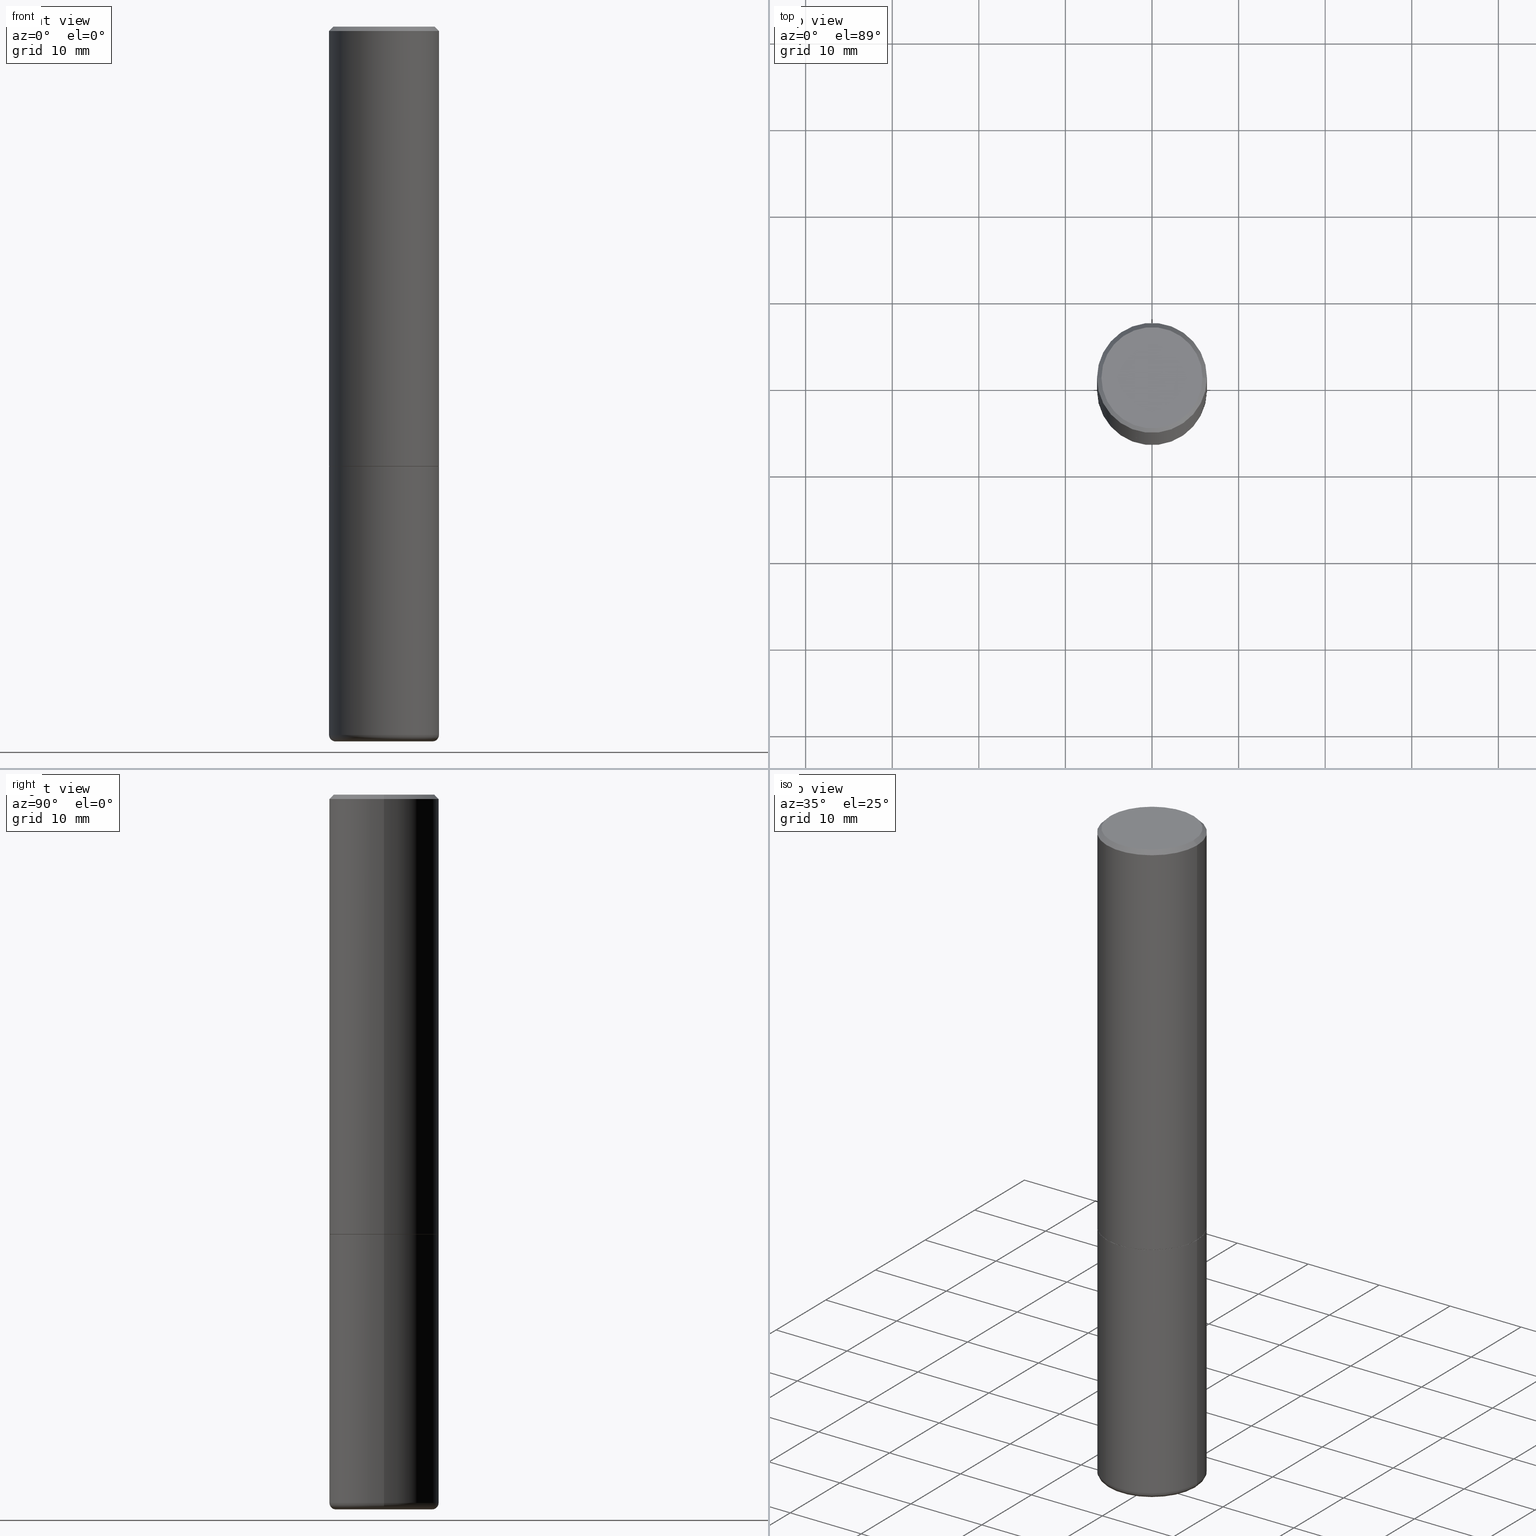
[diagram: canonical four-view strip — front | top / right | iso, engineering-drawing reading convention]
A machine part, canonical four-view strip (front | top / right | iso — engineering-drawing reading convention). The complete STEP part file that produces these views, byte-faithful:
ISO-10303-21;
HEADER;
FILE_DESCRIPTION (( 'STEP AP203' ),
    '1' );
FILE_NAME ('77176.STEP',
    '2024-03-06T16:16:53',
    ( '' ),
    ( '' ),
    'SwSTEP 2.0',
    'SolidWorks 2023',
    '' );
FILE_SCHEMA (( 'CONFIG_CONTROL_DESIGN' ));
ENDSEC;

DATA;
#1 = DIRECTION ( 'NONE',  ( -2.445468806185136597E-29, 3.491481338843145583E-15, 1.000000000000000000 ) ) ;
#2 = DIRECTION ( 'NONE',  ( 1.000000000000000000, -6.982962677686262766E-15, 4.883557194083111780E-29 ) ) ;
#3 = CARTESIAN_POINT ( 'NONE',  ( 0.2200000000000000011, -1.277882170016590942E-14, -3.220000000000000195 ) ) ;
#4 = DIRECTION ( 'NONE',  ( -2.445468806185136597E-29, 3.491481338843145583E-15, 1.000000000000000000 ) ) ;
#5 = CIRCLE ( 'NONE', #92, 0.02999999999999971440 ) ;
#6 = EDGE_LOOP ( 'NONE', ( #84, #311, #244, #404 ) ) ;
#7 = DIRECTION ( 'NONE',  ( -2.445468806185136597E-29, 3.491481338843145583E-15, 1.000000000000000000 ) ) ;
#8 = DIRECTION ( 'NONE',  ( 1.000000000000000000, -6.982962677686266711E-15, 4.876176775795935793E-29 ) ) ;
#9 = EDGE_CURVE ( 'NONE', #410, #307, #237, .T. ) ;
#10 = CARTESIAN_POINT ( 'NONE',  ( -0.2500000000000001110, 1.776356839400251254E-15, -1.229733772563727006E-29 ) ) ;
#11 = ORIENTED_EDGE ( 'NONE', *, *, #217, .F. ) ;
#12 = CC_DESIGN_PERSON_AND_ORGANIZATION_ASSIGNMENT ( #175, #323, ( #358 ) ) ;
#13 = DIRECTION ( 'NONE',  ( 1.000000000000000000, -6.982962677686267499E-15, 0.000000000000000000 ) ) ;
#14 =( CONVERSION_BASED_UNIT ( 'INCH', #165 ) LENGTH_UNIT ( ) NAMED_UNIT ( #138 ) );
#15 = ADVANCED_BREP_SHAPE_REPRESENTATION ( '77176', ( #146, #291, #78 ), #283 ) ;
#16 = ADVANCED_FACE ( 'NONE', ( #272 ), #408, .T. ) ;
#17 = COORDINATED_UNIVERSAL_TIME_OFFSET ( 5, 0, .BEHIND. ) ;
#18 = ORIENTED_EDGE ( 'NONE', *, *, #30, .T. ) ;
#19 = ADVANCED_FACE ( 'NONE', ( #310 ), #396, .T. ) ;
#20 = ORIENTED_EDGE ( 'NONE', *, *, #218, .F. ) ;
#21 = DATE_AND_TIME ( #403, #145 ) ;
#22 = AXIS2_PLACEMENT_3D ( 'NONE', #135, #103, #236 ) ;
#23 = CARTESIAN_POINT ( 'NONE',  ( 0.2200000000000000566, -1.288356614033120121E-14, -3.249999999999999556 ) ) ;
#24 = LOCAL_TIME ( 11, 16, 53.00000000000000000, #41 ) ;
#25 = FACE_OUTER_BOUND ( 'NONE', #149, .T. ) ;
#26 = ORIENTED_EDGE ( 'NONE', *, *, #62, .F. ) ;
#27 = CLOSED_SHELL ( 'NONE', ( #277, #157, #173, #16, #268, #19 ) ) ;
#28 = EDGE_CURVE ( 'NONE', #285, #307, #411, .T. ) ;
#29 = AXIS2_PLACEMENT_3D ( 'NONE', #248, #293, #2 ) ;
#30 = EDGE_CURVE ( 'NONE', #365, #201, #107, .T. ) ;
#31 = CARTESIAN_POINT ( 'NONE',  ( 0.000000000000000000, 0.000000000000000000, 0.000000000000000000 ) ) ;
#32 = DIRECTION ( 'NONE',  ( -2.445468806185136597E-29, 3.491481338843145583E-15, 1.000000000000000000 ) ) ;
#33 = CIRCLE ( 'NONE', #321, 0.2200000000000000566 ) ;
#34 = DIRECTION ( 'NONE',  ( 2.438088387897960049E-29, -3.491481338843145188E-15, -1.000000000000000000 ) ) ;
#35 = DIRECTION ( 'NONE',  ( 1.000000000000000000, -6.982962677686269077E-15, 0.000000000000000000 ) ) ;
#36 = DATE_AND_TIME ( #330, #24 ) ;
#37 = DIRECTION ( 'NONE',  ( -2.445468806185136877E-29, 3.491481338843145188E-15, 1.000000000000000000 ) ) ;
#38 = CARTESIAN_POINT ( 'NONE',  ( -0.2489999999999999991, -5.208412811295418518E-15, -2.000000000000000000 ) ) ;
#39 = CIRCLE ( 'NONE', #278, 0.2500000000000000000 ) ;
#40 = CC_DESIGN_DATE_AND_TIME_ASSIGNMENT ( #336, #105, ( #279 ) ) ;
#41 = COORDINATED_UNIVERSAL_TIME_OFFSET ( 5, 0, .BEHIND. ) ;
#42 = ORIENTED_EDGE ( 'NONE', *, *, #189, .T. ) ;
#43 = DIRECTION ( 'NONE',  ( 1.000000000000000000, -6.982962677686269866E-15, 0.000000000000000000 ) ) ;
#44 = DIRECTION ( 'NONE',  ( -1.000000000000000000, 6.982962677686265922E-15, -4.876176775795935793E-29 ) ) ;
#45 = ORIENTED_EDGE ( 'NONE', *, *, #189, .F. ) ;
#46 = EDGE_CURVE ( 'NONE', #158, #282, #5, .T. ) ;
#47 = APPROVAL_ROLE ( '' ) ;
#48 = PRODUCT_RELATED_PRODUCT_CATEGORY ( 'detail', '', ( #415 ) ) ;
#49 =( LENGTH_UNIT ( ) NAMED_UNIT ( * ) SI_UNIT ( $, .METRE. ) );
#50 = AXIS2_PLACEMENT_3D ( 'NONE', #70, #32, #155 ) ;
#51 = VECTOR ( 'NONE', #167, 39.37007874015748143 ) ;
#52 = EDGE_LOOP ( 'NONE', ( #287, #322, #58, #308 ) ) ;
#53 = FACE_OUTER_BOUND ( 'NONE', #232, .T. ) ;
#54 = APPROVAL ( #115, 'UNSPECIFIED' ) ;
#55 = APPROVAL_ROLE ( '' ) ;
#56 = EDGE_LOOP ( 'NONE', ( #168, #273, #288, #251 ) ) ;
#57 = AXIS2_PLACEMENT_3D ( 'NONE', #137, #171, #316 ) ;
#58 = ORIENTED_EDGE ( 'NONE', *, *, #28, .F. ) ;
#59 = DIRECTION ( 'NONE',  ( -2.445468806185136597E-29, 3.491481338843145583E-15, 1.000000000000000000 ) ) ;
#60 = VERTEX_POINT ( 'NONE', #195 ) ;
#61 = CARTESIAN_POINT ( 'NONE',  ( 0.2489999999999999991, -8.721720384430171040E-15, -2.000000000000000000 ) ) ;
#62 = EDGE_CURVE ( 'NONE', #401, #201, #108, .T. ) ;
#63 = AXIS2_PLACEMENT_3D ( 'NONE', #335, #34, #44 ) ;
#64 = DIRECTION ( 'NONE',  ( 1.000000000000000000, -6.982962677686266711E-15, 4.876176775795935793E-29 ) ) ;
#65 = DIRECTION ( 'NONE',  ( 1.000000000000000000, -6.982962677686270655E-15, 0.000000000000000000 ) ) ;
#66 = AXIS2_PLACEMENT_3D ( 'NONE', #106, #126, #159 ) ;
#67 = ADVANCED_FACE ( 'NONE', ( #274 ), #416, .T. ) ;
#68 = DIRECTION ( 'NONE',  ( 1.000000000000000000, -6.982962677686270655E-15, 0.000000000000000000 ) ) ;
#69 = CC_DESIGN_PERSON_AND_ORGANIZATION_ASSIGNMENT ( #387, #231, ( #279 ) ) ;
#70 = CARTESIAN_POINT ( 'NONE',  ( 0.000000000000000000, 0.000000000000000000, 0.000000000000000000 ) ) ;
#71 = CARTESIAN_POINT ( 'NONE',  ( -0.2500000000000002776, -1.748293572161900530E-15, -1.998999999999999888 ) ) ;
#72 = CC_DESIGN_APPROVAL ( #332, ( #279 ) ) ;
#73 = CARTESIAN_POINT ( 'NONE',  ( 4.890937612370287172E-31, -6.982962677686310098E-17, -0.02000000000000005593 ) ) ;
#74 = EDGE_CURVE ( 'NONE', #246, #60, #230, .T. ) ;
#75 = DIRECTION ( 'NONE',  ( -2.445468806185136597E-29, 3.491481338843145583E-15, 1.000000000000000000 ) ) ;
#76 = APPROVAL_DATE_TIME ( #21, #54 ) ;
#77 = TOROIDAL_SURFACE ( 'NONE', #346, 0.2200000000000000011, 0.02999999999999969705 ) ;
#78 = AXIS2_PLACEMENT_3D ( 'NONE', #226, #253, #352 ) ;
#79 = EDGE_LOOP ( 'NONE', ( #348, #81, #169, #166 ) ) ;
#80 = PERSON_AND_ORGANIZATION ( #355, #400 ) ;
#81 = ORIENTED_EDGE ( 'NONE', *, *, #184, .T. ) ;
#82 = DIRECTION ( 'NONE',  ( -2.445468806185136597E-29, 3.491481338843145583E-15, 1.000000000000000000 ) ) ;
#83 = PERSON_AND_ORGANIZATION_ROLE ( 'design_supplier' ) ;
#84 = ORIENTED_EDGE ( 'NONE', *, *, #74, .F. ) ;
#85 = DIRECTION ( 'NONE',  ( -2.445468806185136597E-29, 3.491481338843145583E-15, 1.000000000000000000 ) ) ;
#86 = TOROIDAL_SURFACE ( 'NONE', #29, 0.2200000000000000011, 0.02999999999999969705 ) ;
#87 = CIRCLE ( 'NONE', #185, 0.2500000000000002776 ) ;
#88 = DIRECTION ( 'NONE',  ( 1.000000000000000000, -6.982962677686267499E-15, 4.876225828469310563E-29 ) ) ;
#89 = EDGE_CURVE ( 'NONE', #365, #282, #39, .T. ) ;
#90 = LINE ( 'NONE', #220, #364 ) ;
#91 = DIRECTION ( 'NONE',  ( -2.445468806185136597E-29, 3.491481338843145583E-15, 1.000000000000000000 ) ) ;
#92 = AXIS2_PLACEMENT_3D ( 'NONE', #3, #127, #43 ) ;
#93 = CARTESIAN_POINT ( 'NONE',  ( 7.947773620101692818E-29, -1.134731435124022127E-14, -3.249999999999999556 ) ) ;
#94 = FACE_OUTER_BOUND ( 'NONE', #213, .T. ) ;
#95 = LINE ( 'NONE', #359, #340 ) ;
#96 = VECTOR ( 'NONE', #392, 39.37007874015748143 ) ;
#97 = LOCAL_TIME ( 11, 16, 53.00000000000000000, #172 ) ;
#98 = VERTEX_POINT ( 'NONE', #38 ) ;
#99 = CARTESIAN_POINT ( 'NONE',  ( 0.2499999999999999167, -1.784954126219745400E-15, -0.02000000000000005593 ) ) ;
#100 = ORIENTED_EDGE ( 'NONE', *, *, #218, .T. ) ;
#101 = SHAPE_DEFINITION_REPRESENTATION ( #328, #15 ) ;
#102 = ORIENTED_EDGE ( 'NONE', *, *, #30, .F. ) ;
#103 = DIRECTION ( 'NONE',  ( -2.445468806185136597E-29, 3.491481338843145583E-15, 1.000000000000000000 ) ) ;
#104 = EDGE_CURVE ( 'NONE', #201, #401, #113, .T. ) ;
#105 = DATE_TIME_ROLE ( 'classification_date' ) ;
#106 = CARTESIAN_POINT ( 'NONE',  ( 4.890937612370273194E-29, -6.982962677686291165E-15, -2.000000000000000000 ) ) ;
#107 = LINE ( 'NONE', #300, #252 ) ;
#108 = CIRCLE ( 'NONE', #363, 0.2500000000000000000 ) ;
#109 = AXIS2_PLACEMENT_3D ( 'NONE', #257, #414, #223 ) ;
#110 = EDGE_LOOP ( 'NONE', ( #239, #42, #302, #394 ) ) ;
#111 = CC_DESIGN_PERSON_AND_ORGANIZATION_ASSIGNMENT ( #376, #83, ( #358 ) ) ;
#112 = ORIENTED_EDGE ( 'NONE', *, *, #9, .F. ) ;
#113 = CIRCLE ( 'NONE', #66, 0.2500000000000000000 ) ;
#114 = EDGE_CURVE ( 'NONE', #369, #285, #366, .T. ) ;
#115 = APPROVAL_STATUS ( 'not_yet_approved' ) ;
#116 = ORIENTED_EDGE ( 'NONE', *, *, #333, .T. ) ;
#117 = CARTESIAN_POINT ( 'NONE',  ( 4.890937612370273194E-29, -6.982962677686291165E-15, -2.000000000000000000 ) ) ;
#118 = ADVANCED_FACE ( 'NONE', ( #391 ), #362, .T. ) ;
#119 = EDGE_CURVE ( 'NONE', #282, #365, #242, .T. ) ;
#120 = AXIS2_PLACEMENT_3D ( 'NONE', #397, #161, #8 ) ;
#121 = EDGE_CURVE ( 'NONE', #60, #246, #338, .T. ) ;
#122 = PRODUCT_DEFINITION ( 'UNKNOWN', '', #358, #179 ) ;
#123 = CARTESIAN_POINT ( 'NONE',  ( -0.2200000000000000566, -9.625166702121341610E-15, -3.249999999999999556 ) ) ;
#124 = ADVANCED_FACE ( 'NONE', ( #53 ), #208, .F. ) ;
#125 = CIRCLE ( 'NONE', #154, 0.2500000000000002776 ) ;
#126 = DIRECTION ( 'NONE',  ( -2.445468806185136597E-29, 3.491481338843145583E-15, 1.000000000000000000 ) ) ;
#127 = DIRECTION ( 'NONE',  ( -6.982962677686266711E-15, -1.000000000000000000, 3.491481338843145583E-15 ) ) ;
#128 = APPROVAL_PERSON_ORGANIZATION ( #80, #261, #55 ) ;
#129 = ORIENTED_EDGE ( 'NONE', *, *, #89, .T. ) ;
#130 = PERSON_AND_ORGANIZATION ( #355, #400 ) ;
#131 = DIRECTION ( 'NONE',  ( 1.000000000000000000, -6.982962677686267499E-15, 4.876225828469310563E-29 ) ) ;
#132 = DIRECTION ( 'NONE',  ( 1.000000000000000000, -6.982962677686265922E-15, 4.876176775795935793E-29 ) ) ;
#133 = DIRECTION ( 'NONE',  ( -2.445468806185136877E-29, 3.491481338843145188E-15, 1.000000000000000000 ) ) ;
#134 = EDGE_LOOP ( 'NONE', ( #216, #18, #26, #11 ) ) ;
#135 = CARTESIAN_POINT ( 'NONE',  ( 4.890937612370273194E-29, -6.982962677686291165E-15, -2.000000000000000000 ) ) ;
#136 = ORIENTED_EDGE ( 'NONE', *, *, #89, .F. ) ;
#137 = CARTESIAN_POINT ( 'NONE',  ( 4.890937612370287172E-31, -6.982962677686310098E-17, -0.02000000000000005593 ) ) ;
#138 = DIMENSIONAL_EXPONENTS ( 1.000000000000000000, 0.000000000000000000, 0.000000000000000000, 0.000000000000000000, 0.000000000000000000, 0.000000000000000000, 0.000000000000000000 ) ;
#139 = ADVANCED_FACE ( 'NONE', ( #207 ), #350, .T. ) ;
#140 = ADVANCED_FACE ( 'NONE', ( #202 ), #219, .T. ) ;
#141 = ORIENTED_EDGE ( 'NONE', *, *, #303, .F. ) ;
#142 = CARTESIAN_POINT ( 'NONE',  ( 4.888492143564087591E-29, -6.979471196347447369E-15, -1.998999999999999888 ) ) ;
#143 = CALENDAR_DATE ( 2024, 6, 3 ) ;
#144 = AXIS2_PLACEMENT_3D ( 'NONE', #247, #312, #373 ) ;
#145 = LOCAL_TIME ( 11, 16, 53.00000000000000000, #344 ) ;
#146 = MANIFOLD_SOLID_BREP ( 'Body-Move/Copy2[1]', #27 ) ;
#147 = CARTESIAN_POINT ( 'NONE',  ( 7.874409555916140425E-29, -1.124256991107492948E-14, -3.220000000000000195 ) ) ;
#148 = EDGE_CURVE ( 'NONE', #369, #410, #87, .T. ) ;
#149 = EDGE_LOOP ( 'NONE', ( #265, #361 ) ) ;
#150 = PLANE ( 'NONE',  #385 ) ;
#151 = APPLICATION_CONTEXT ( 'configuration controlled 3d designs of mechanical parts and assemblies' ) ;
#152 = DIRECTION ( 'NONE',  ( -2.445468806185136597E-29, 3.491481338843145583E-15, 1.000000000000000000 ) ) ;
#153 = VECTOR ( 'NONE', #395, 39.37007874015748143 ) ;
#154 = AXIS2_PLACEMENT_3D ( 'NONE', #349, #59, #180 ) ;
#155 = DIRECTION ( 'NONE',  ( 1.000000000000000000, -6.982962677686266711E-15, 4.876176775795935793E-29 ) ) ;
#156 = DIRECTION ( 'NONE',  ( 1.000000000000000000, -6.982962677686267499E-15, 0.000000000000000000 ) ) ;
#157 = ADVANCED_FACE ( 'NONE', ( #319 ), #77, .T. ) ;
#158 = VERTEX_POINT ( 'NONE', #23 ) ;
#159 = DIRECTION ( 'NONE',  ( 1.000000000000000000, -6.982962677686266711E-15, 0.000000000000000000 ) ) ;
#160 = VECTOR ( 'NONE', #133, 39.37007874015748143 ) ;
#161 = DIRECTION ( 'NONE',  ( -2.445468806185136597E-29, 3.491481338843145583E-15, 1.000000000000000000 ) ) ;
#162 = EDGE_LOOP ( 'NONE', ( #388, #45 ) ) ;
#163 = LINE ( 'NONE', #275, #153 ) ;
#164 = CARTESIAN_POINT ( 'NONE',  ( 4.890937612370287172E-31, -6.982962677686310098E-17, -0.02000000000000005593 ) ) ;
#165 = LENGTH_MEASURE_WITH_UNIT ( LENGTH_MEASURE( 0.02539999999999999897 ), #49 );
#166 = ORIENTED_EDGE ( 'NONE', *, *, #292, .F. ) ;
#167 = DIRECTION ( 'NONE',  ( 0.7071067811865465735, -7.319954787623252890E-15, -0.7071067811865484609 ) ) ;
#168 = ORIENTED_EDGE ( 'NONE', *, *, #412, .F. ) ;
#169 = ORIENTED_EDGE ( 'NONE', *, *, #148, .F. ) ;
#170 = EDGE_LOOP ( 'NONE', ( #315, #100, #269, #377 ) ) ;
#171 = DIRECTION ( 'NONE',  ( 2.445468806185136597E-29, -3.491481338843145583E-15, -1.000000000000000000 ) ) ;
#172 = COORDINATED_UNIVERSAL_TIME_OFFSET ( 5, 0, .BEHIND. ) ;
#173 = ADVANCED_FACE ( 'NONE', ( #25 ), #150, .F. ) ;
#174 = ORIENTED_EDGE ( 'NONE', *, *, #114, .T. ) ;
#175 = PERSON_AND_ORGANIZATION ( #355, #400 ) ;
#176 = AXIS2_PLACEMENT_3D ( 'NONE', #263, #389, #356 ) ;
#177 = APPROVAL_PERSON_ORGANIZATION ( #130, #332, #191 ) ;
#178 = APPROVAL_DATE_TIME ( #250, #261 ) ;
#179 = DESIGN_CONTEXT ( 'detailed design', #294, 'design' ) ;
#180 = DIRECTION ( 'NONE',  ( 1.000000000000000000, -6.982962677686266711E-15, 0.000000000000000000 ) ) ;
#181 = VECTOR ( 'NONE', #37, 39.37007874015748143 ) ;
#182 = DIRECTION ( 'NONE',  ( -0.7071067811865465735, 2.468850131082246805E-15, -0.7071067811865484609 ) ) ;
#183 =( NAMED_UNIT ( * ) PLANE_ANGLE_UNIT ( ) SI_UNIT ( $, .RADIAN. ) );
#184 = EDGE_CURVE ( 'NONE', #98, #410, #227, .T. ) ;
#185 = AXIS2_PLACEMENT_3D ( 'NONE', #142, #249, #375 ) ;
#186 = DIRECTION ( 'NONE',  ( 1.000000000000000000, -6.982962677686266711E-15, 0.000000000000000000 ) ) ;
#187 = CARTESIAN_POINT ( 'NONE',  ( 2.087702828670439639E-46, -2.980686340760894400E-32, -8.537024980200822558E-18 ) ) ;
#188 = DIRECTION ( 'NONE',  ( -2.445468806185136597E-29, 3.491481338843145583E-15, 1.000000000000000000 ) ) ;
#189 = EDGE_CURVE ( 'NONE', #98, #334, #206, .T. ) ;
#190 = PERSON_AND_ORGANIZATION ( #355, #400 ) ;
#191 = APPROVAL_ROLE ( '' ) ;
#192 = CC_DESIGN_PERSON_AND_ORGANIZATION_ASSIGNMENT ( #190, #343, ( #415 ) ) ;
#193 = ORIENTED_EDGE ( 'NONE', *, *, #224, .F. ) ;
#194 = APPROVAL_STATUS ( 'not_yet_approved' ) ;
#195 = CARTESIAN_POINT ( 'NONE',  ( -0.2299999999999999267, 1.640996229256272125E-15, -8.537024980212177841E-18 ) ) ;
#196 = ORIENTED_EDGE ( 'NONE', *, *, #46, .T. ) ;
#197 = EDGE_LOOP ( 'NONE', ( #112, #390, #174, #193 ) ) ;
#198 = CARTESIAN_POINT ( 'NONE',  ( 4.890937612370273194E-29, -6.982962677686291165E-15, -2.000000000000000000 ) ) ;
#199 = AXIS2_PLACEMENT_3D ( 'NONE', #245, #370, #132 ) ;
#200 = DIRECTION ( 'NONE',  ( -2.445468806185136597E-29, 3.491481338843145583E-15, 1.000000000000000000 ) ) ;
#201 = VERTEX_POINT ( 'NONE', #260 ) ;
#202 = FACE_OUTER_BOUND ( 'NONE', #56, .T. ) ;
#203 = ORIENTED_EDGE ( 'NONE', *, *, #217, .T. ) ;
#204 = PERSON_AND_ORGANIZATION ( #355, #400 ) ;
#205 = CC_DESIGN_DATE_AND_TIME_ASSIGNMENT ( #210, #314, ( #122 ) ) ;
#206 = CIRCLE ( 'NONE', #22, 0.2489999999999999991 ) ;
#207 = FACE_OUTER_BOUND ( 'NONE', #79, .T. ) ;
#208 = PLANE ( 'NONE',  #144 ) ;
#209 = ORIENTED_EDGE ( 'NONE', *, *, #74, .T. ) ;
#210 = DATE_AND_TIME ( #339, #97 ) ;
#211 = AXIS2_PLACEMENT_3D ( 'NONE', #383, #241, #367 ) ;
#212 = APPROVAL_PERSON_ORGANIZATION ( #281, #54, #47 ) ;
#213 = EDGE_LOOP ( 'NONE', ( #20, #116, #196, #136 ) ) ;
#214 = FACE_OUTER_BOUND ( 'NONE', #134, .T. ) ;
#215 = DIRECTION ( 'NONE',  ( 1.000000000000000000, -6.982962677686266711E-15, 0.000000000000000000 ) ) ;
#216 = ORIENTED_EDGE ( 'NONE', *, *, #119, .T. ) ;
#217 = EDGE_CURVE ( 'NONE', #282, #401, #163, .T. ) ;
#218 = EDGE_CURVE ( 'NONE', #337, #365, #398, .T. ) ;
#219 = CONICAL_SURFACE ( 'NONE', #57, 0.2499999999999999167, 0.7853981633974469467 ) ;
#220 = CARTESIAN_POINT ( 'NONE',  ( -0.2499999999999999167, 1.675911042644703182E-15, -0.02000000000000005593 ) ) ;
#221 = CONICAL_SURFACE ( 'NONE', #380, 0.2489999999999999991, 0.7853981633975507526 ) ;
#222 = CARTESIAN_POINT ( 'NONE',  ( -0.2499999999999998612, -9.466213071674679013E-15, -3.220000000000000195 ) ) ;
#223 = DIRECTION ( 'NONE',  ( 1.000000000000000000, -6.982962677686266711E-15, 4.876176775795935793E-29 ) ) ;
#224 = EDGE_CURVE ( 'NONE', #307, #285, #324, .T. ) ;
#225 = DIRECTION ( 'NONE',  ( 1.000000000000000000, -6.982962677686269077E-15, 0.000000000000000000 ) ) ;
#226 = CARTESIAN_POINT ( 'NONE',  ( 0.000000000000000000, 0.000000000000000000, 0.000000000000000000 ) ) ;
#227 = LINE ( 'NONE', #271, #96 ) ;
#228 = MECHANICAL_CONTEXT ( 'NONE', #151, 'mechanical' ) ;
#229 = FACE_OUTER_BOUND ( 'NONE', #52, .T. ) ;
#230 = CIRCLE ( 'NONE', #305, 0.2299999999999999267 ) ;
#231 = PERSON_AND_ORGANIZATION_ROLE ( 'classification_officer' ) ;
#232 = EDGE_LOOP ( 'NONE', ( #313, #209 ) ) ;
#233 = ORIENTED_EDGE ( 'NONE', *, *, #104, .F. ) ;
#234 = APPLICATION_PROTOCOL_DEFINITION ( 'international standard', 'config_control_design', 1994, #151 ) ;
#235 = DIRECTION ( 'NONE',  ( 1.000000000000000000, -6.982962677686266711E-15, 0.000000000000000000 ) ) ;
#236 = DIRECTION ( 'NONE',  ( 1.000000000000000000, -6.982962677686266711E-15, 0.000000000000000000 ) ) ;
#237 = LINE ( 'NONE', #10, #160 ) ;
#238 = APPROVAL_DATE_TIME ( #36, #332 ) ;
#239 = ORIENTED_EDGE ( 'NONE', *, *, #184, .F. ) ;
#240 = CARTESIAN_POINT ( 'NONE',  ( 7.874409555916140425E-29, -1.124256991107492948E-14, -3.220000000000000195 ) ) ;
#241 = DIRECTION ( 'NONE',  ( 7.105427357601001859E-15, 1.000000000000000000, -3.491481338843145583E-15 ) ) ;
#242 = CIRCLE ( 'NONE', #266, 0.2500000000000000000 ) ;
#243 = CC_DESIGN_APPROVAL ( #261, ( #358 ) ) ;
#244 = ORIENTED_EDGE ( 'NONE', *, *, #28, .T. ) ;
#245 = CARTESIAN_POINT ( 'NONE',  ( 4.890937612370273194E-29, -6.982962677686291165E-15, -2.000000000000000000 ) ) ;
#246 = VERTEX_POINT ( 'NONE', #299 ) ;
#247 = CARTESIAN_POINT ( 'NONE',  ( 1.606081415867840870E-15, 0.2299999999999999267, -8.073092204240237214E-16 ) ) ;
#248 = CARTESIAN_POINT ( 'NONE',  ( 7.874409555916140425E-29, -1.124256991107492948E-14, -3.220000000000000195 ) ) ;
#249 = DIRECTION ( 'NONE',  ( -2.445468806185136597E-29, 3.491481338843145583E-15, 1.000000000000000000 ) ) ;
#250 = DATE_AND_TIME ( #143, #325 ) ;
#251 = ORIENTED_EDGE ( 'NONE', *, *, #224, .T. ) ;
#252 = VECTOR ( 'NONE', #368, 39.37007874015748143 ) ;
#253 = DIRECTION ( 'NONE',  ( 0.000000000000000000, 0.000000000000000000, 1.000000000000000000 ) ) ;
#254 = DIRECTION ( 'NONE',  ( 0.7071067811866199593, -2.468850131083015945E-15, 0.7071067811864750752 ) ) ;
#255 = AXIS2_PLACEMENT_3D ( 'NONE', #164, #309, #13 ) ;
#256 = LOCAL_TIME ( 11, 16, 53.00000000000000000, #17 ) ;
#257 = CARTESIAN_POINT ( 'NONE',  ( 0.000000000000000000, 0.000000000000000000, 0.000000000000000000 ) ) ;
#258 = DIRECTION ( 'NONE',  ( -1.000000000000000000, 6.982962677686265922E-15, -4.876176775795935793E-29 ) ) ;
#259 = DIRECTION ( 'NONE',  ( -2.445468806185136597E-29, 3.491481338843145583E-15, 1.000000000000000000 ) ) ;
#260 = CARTESIAN_POINT ( 'NONE',  ( -0.2500000000000000000, -7.336409454980359463E-15, -2.000000000000000000 ) ) ;
#261 = APPROVAL ( #286, 'UNSPECIFIED' ) ;
#262 = CARTESIAN_POINT ( 'NONE',  ( 0.2499999999999999167, -1.784954126219745400E-15, -0.02000000000000005593 ) ) ;
#263 = CARTESIAN_POINT ( 'NONE',  ( 4.890937612370287172E-31, -6.982962677686310098E-17, -0.02000000000000005593 ) ) ;
#264 = FACE_OUTER_BOUND ( 'NONE', #162, .T. ) ;
#265 = ORIENTED_EDGE ( 'NONE', *, *, #62, .T. ) ;
#266 = AXIS2_PLACEMENT_3D ( 'NONE', #298, #259, #65 ) ;
#267 = UNCERTAINTY_MEASURE_WITH_UNIT (LENGTH_MEASURE( 1.000000000000000082E-05 ), #14, 'distance_accuracy_value', 'NONE');
#268 = ADVANCED_FACE ( 'NONE', ( #94 ), #86, .T. ) ;
#269 = ORIENTED_EDGE ( 'NONE', *, *, #119, .F. ) ;
#270 = CARTESIAN_POINT ( 'NONE',  ( 0.2500000000000001110, -1.745740669421567467E-15, 1.219044193948984509E-29 ) ) ;
#271 = CARTESIAN_POINT ( 'NONE',  ( -0.2489999999999999991, -5.213711265643641709E-15, -2.000000000000000000 ) ) ;
#272 = FACE_OUTER_BOUND ( 'NONE', #318, .T. ) ;
#273 = ORIENTED_EDGE ( 'NONE', *, *, #121, .F. ) ;
#274 = FACE_OUTER_BOUND ( 'NONE', #6, .T. ) ;
#275 = CARTESIAN_POINT ( 'NONE',  ( 0.2500000000000000000, -1.745740669421566678E-15, 1.219044193948983948E-29 ) ) ;
#276 = EDGE_LOOP ( 'NONE', ( #141, #345 ) ) ;
#277 = ADVANCED_FACE ( 'NONE', ( #214 ), #384, .T. ) ;
#278 = AXIS2_PLACEMENT_3D ( 'NONE', #240, #7, #68 ) ;
#279 = SECURITY_CLASSIFICATION ( '', '', #320 ) ;
#280 = LINE ( 'NONE', #99, #51 ) ;
#281 = PERSON_AND_ORGANIZATION ( #355, #400 ) ;
#282 = VERTEX_POINT ( 'NONE', #295 ) ;
#283 =( GEOMETRIC_REPRESENTATION_CONTEXT ( 3 ) GLOBAL_UNCERTAINTY_ASSIGNED_CONTEXT ( ( #267 ) ) GLOBAL_UNIT_ASSIGNED_CONTEXT ( ( #14, #183, #354 ) ) REPRESENTATION_CONTEXT ( 'NONE', 'WORKASPACE' ) );
#284 = ADVANCED_FACE ( 'NONE', ( #229 ), #413, .T. ) ;
#285 = VERTEX_POINT ( 'NONE', #262 ) ;
#286 = APPROVAL_STATUS ( 'not_yet_approved' ) ;
#287 = ORIENTED_EDGE ( 'NONE', *, *, #148, .T. ) ;
#288 = ORIENTED_EDGE ( 'NONE', *, *, #341, .T. ) ;
#289 = AXIS2_PLACEMENT_3D ( 'NONE', #117, #75, #342 ) ;
#290 = CC_DESIGN_APPROVAL ( #54, ( #122 ) ) ;
#291 = MANIFOLD_SOLID_BREP ( 'Body-Move/Copy2[2]', #378 ) ;
#292 = EDGE_CURVE ( 'NONE', #334, #369, #95, .T. ) ;
#293 = DIRECTION ( 'NONE',  ( -2.445468806185136597E-29, 3.491481338843145583E-15, 1.000000000000000000 ) ) ;
#294 = APPLICATION_CONTEXT ( 'configuration controlled 3d designs of mechanical parts and assemblies' ) ;
#295 = CARTESIAN_POINT ( 'NONE',  ( 0.2499999999999998612, -1.298831058049649773E-14, -3.220000000000000195 ) ) ;
#296 = CIRCLE ( 'NONE', #347, 0.2200000000000000566 ) ;
#297 = DIRECTION ( 'NONE',  ( 2.438088387897960049E-29, -3.491481338843145188E-15, -1.000000000000000000 ) ) ;
#298 = CARTESIAN_POINT ( 'NONE',  ( 7.874409555916140425E-29, -1.124256991107492948E-14, -3.220000000000000195 ) ) ;
#299 = CARTESIAN_POINT ( 'NONE',  ( 0.2299999999999999267, -1.681434332853598617E-15, -8.537024980189327067E-18 ) ) ;
#300 = CARTESIAN_POINT ( 'NONE',  ( -0.2500000000000000000, 1.776356839400250465E-15, -1.229733772563726445E-29 ) ) ;
#301 = CARTESIAN_POINT ( 'NONE',  ( -0.2499999999999999167, 1.675911042644703182E-15, -0.02000000000000005593 ) ) ;
#302 = ORIENTED_EDGE ( 'NONE', *, *, #292, .T. ) ;
#303 = EDGE_CURVE ( 'NONE', #158, #337, #296, .T. ) ;
#304 = CARTESIAN_POINT ( 'NONE',  ( 0.2500000000000000000, -8.728703347107857054E-15, -2.000000000000000000 ) ) ;
#305 = AXIS2_PLACEMENT_3D ( 'NONE', #360, #331, #131 ) ;
#306 = PLANE ( 'NONE',  #199 ) ;
#307 = VERTEX_POINT ( 'NONE', #301 ) ;
#308 = ORIENTED_EDGE ( 'NONE', *, *, #114, .F. ) ;
#309 = DIRECTION ( 'NONE',  ( -2.445468806185136597E-29, 3.491481338843145583E-15, 1.000000000000000000 ) ) ;
#310 = FACE_OUTER_BOUND ( 'NONE', #276, .T. ) ;
#311 = ORIENTED_EDGE ( 'NONE', *, *, #412, .T. ) ;
#312 = DIRECTION ( 'NONE',  ( 2.438088387897960049E-29, -3.491481338843145188E-15, -1.000000000000000000 ) ) ;
#313 = ORIENTED_EDGE ( 'NONE', *, *, #121, .T. ) ;
#314 = DATE_TIME_ROLE ( 'creation_date' ) ;
#315 = ORIENTED_EDGE ( 'NONE', *, *, #303, .T. ) ;
#316 = DIRECTION ( 'NONE',  ( -1.000000000000000000, 6.982962677686267499E-15, 0.000000000000000000 ) ) ;
#317 = COORDINATED_UNIVERSAL_TIME_OFFSET ( 5, 0, .BEHIND. ) ;
#318 = EDGE_LOOP ( 'NONE', ( #102, #129, #203, #233 ) ) ;
#319 = FACE_OUTER_BOUND ( 'NONE', #170, .T. ) ;
#320 = SECURITY_CLASSIFICATION_LEVEL ( 'unclassified' ) ;
#321 = AXIS2_PLACEMENT_3D ( 'NONE', #93, #4, #225 ) ;
#322 = ORIENTED_EDGE ( 'NONE', *, *, #9, .T. ) ;
#323 = PERSON_AND_ORGANIZATION_ROLE ( 'creator' ) ;
#324 = CIRCLE ( 'NONE', #329, 0.2499999999999999167 ) ;
#325 = LOCAL_TIME ( 11, 16, 53.00000000000000000, #317 ) ;
#326 = FACE_OUTER_BOUND ( 'NONE', #110, .T. ) ;
#327 = CARTESIAN_POINT ( 'NONE',  ( 0.2500000000000002776, -8.725211865769015625E-15, -1.998999999999999888 ) ) ;
#328 = PRODUCT_DEFINITION_SHAPE ( 'NONE', 'NONE',  #122 ) ;
#329 = AXIS2_PLACEMENT_3D ( 'NONE', #73, #200, #156 ) ;
#330 = CALENDAR_DATE ( 2024, 6, 3 ) ;
#331 = DIRECTION ( 'NONE',  ( -2.445468806185136597E-29, 3.491481338843145583E-15, 1.000000000000000000 ) ) ;
#332 = APPROVAL ( #194, 'UNSPECIFIED' ) ;
#333 = EDGE_CURVE ( 'NONE', #337, #158, #33, .T. ) ;
#334 = VERTEX_POINT ( 'NONE', #61 ) ;
#335 = CARTESIAN_POINT ( 'NONE',  ( 1.358398051899499917E-28, -3.275945279050356991E-15, -3.249999999999999556 ) ) ;
#336 = DATE_AND_TIME ( #393, #256 ) ;
#337 = VERTEX_POINT ( 'NONE', #123 ) ;
#338 = CIRCLE ( 'NONE', #372, 0.2299999999999999267 ) ;
#339 = CALENDAR_DATE ( 2024, 6, 3 ) ;
#340 = VECTOR ( 'NONE', #254, 39.37007874015748143 ) ;
#341 = EDGE_CURVE ( 'NONE', #60, #307, #90, .T. ) ;
#342 = DIRECTION ( 'NONE',  ( 1.000000000000000000, -6.982962677686266711E-15, 0.000000000000000000 ) ) ;
#343 = PERSON_AND_ORGANIZATION_ROLE ( 'design_owner' ) ;
#344 = COORDINATED_UNIVERSAL_TIME_OFFSET ( 5, 0, .BEHIND. ) ;
#345 = ORIENTED_EDGE ( 'NONE', *, *, #333, .F. ) ;
#346 = AXIS2_PLACEMENT_3D ( 'NONE', #147, #85, #409 ) ;
#347 = AXIS2_PLACEMENT_3D ( 'NONE', #381, #188, #35 ) ;
#348 = ORIENTED_EDGE ( 'NONE', *, *, #371, .T. ) ;
#349 = CARTESIAN_POINT ( 'NONE',  ( 4.888492143564087591E-29, -6.979471196347447369E-15, -1.998999999999999888 ) ) ;
#350 = CONICAL_SURFACE ( 'NONE', #289, 0.2489999999999999991, 0.7853981633975507526 ) ;
#351 = CC_DESIGN_SECURITY_CLASSIFICATION ( #279, ( #358 ) ) ;
#352 = DIRECTION ( 'NONE',  ( 1.000000000000000000, 0.000000000000000000, 0.000000000000000000 ) ) ;
#353 = CARTESIAN_POINT ( 'NONE',  ( 4.890937612370273194E-29, -6.982962677686291165E-15, -2.000000000000000000 ) ) ;
#354 =( NAMED_UNIT ( * ) SI_UNIT ( $, .STERADIAN. ) SOLID_ANGLE_UNIT ( ) );
#355 = PERSON ( 'UNSPECIFIED', 'UNSPECIFIED', 'UNSPECIFIED', ('UNSPECIFIED'), ('UNSPECIFIED'), ('UNSPECIFIED') ) ;
#356 = DIRECTION ( 'NONE',  ( -1.000000000000000000, 6.982962677686267499E-15, 0.000000000000000000 ) ) ;
#357 = ADVANCED_FACE ( 'NONE', ( #326 ), #221, .T. ) ;
#358 = PRODUCT_DEFINITION_FORMATION_WITH_SPECIFIED_SOURCE ( 'ANY', '', #415, .NOT_KNOWN. ) ;
#359 = CARTESIAN_POINT ( 'NONE',  ( 0.2489999999999999991, -8.721720384430171040E-15, -2.000000000000000000 ) ) ;
#360 = CARTESIAN_POINT ( 'NONE',  ( 2.087702828670439639E-46, -2.980686340760894400E-32, -8.537024980200822558E-18 ) ) ;
#361 = ORIENTED_EDGE ( 'NONE', *, *, #104, .T. ) ;
#362 = CYLINDRICAL_SURFACE ( 'NONE', #50, 0.2500000000000001110 ) ;
#363 = AXIS2_PLACEMENT_3D ( 'NONE', #198, #1, #235 ) ;
#364 = VECTOR ( 'NONE', #182, 39.37007874015748143 ) ;
#365 = VERTEX_POINT ( 'NONE', #222 ) ;
#366 = LINE ( 'NONE', #270, #181 ) ;
#367 = DIRECTION ( 'NONE',  ( -1.000000000000000000, 7.105427357600993970E-15, 0.000000000000000000 ) ) ;
#368 = DIRECTION ( 'NONE',  ( -2.445468806185136877E-29, 3.491481338843145188E-15, 1.000000000000000000 ) ) ;
#369 = VERTEX_POINT ( 'NONE', #327 ) ;
#370 = DIRECTION ( 'NONE',  ( -2.438088387897960049E-29, 3.491481338843145188E-15, 1.000000000000000000 ) ) ;
#371 = EDGE_CURVE ( 'NONE', #334, #98, #406, .T. ) ;
#372 = AXIS2_PLACEMENT_3D ( 'NONE', #187, #82, #88 ) ;
#373 = DIRECTION ( 'NONE',  ( -1.000000000000000000, 6.982962677686265922E-15, -4.876176775795935793E-29 ) ) ;
#374 = AXIS2_PLACEMENT_3D ( 'NONE', #399, #402, #215 ) ;
#375 = DIRECTION ( 'NONE',  ( 1.000000000000000000, -6.982962677686266711E-15, 0.000000000000000000 ) ) ;
#376 = PERSON_AND_ORGANIZATION ( #355, #400 ) ;
#377 = ORIENTED_EDGE ( 'NONE', *, *, #46, .F. ) ;
#378 = CLOSED_SHELL ( 'NONE', ( #139, #284, #67, #140, #118, #357, #418, #124 ) ) ;
#379 = CARTESIAN_POINT ( 'NONE',  ( 3.364826205900701146E-29, -9.168441072617700951E-15, -2.000000000000000000 ) ) ;
#380 = AXIS2_PLACEMENT_3D ( 'NONE', #353, #91, #186 ) ;
#381 = CARTESIAN_POINT ( 'NONE',  ( 7.947773620101692818E-29, -1.134731435124022127E-14, -3.249999999999999556 ) ) ;
#382 = EDGE_CURVE ( 'NONE', #410, #369, #125, .T. ) ;
#383 = CARTESIAN_POINT ( 'NONE',  ( -0.2200000000000000011, -9.679375892402709259E-15, -3.220000000000000195 ) ) ;
#384 = CYLINDRICAL_SURFACE ( 'NONE', #417, 0.2500000000000000000 ) ;
#385 = AXIS2_PLACEMENT_3D ( 'NONE', #379, #297, #258 ) ;
#386 = CC_DESIGN_PERSON_AND_ORGANIZATION_ASSIGNMENT ( #204, #405, ( #122 ) ) ;
#387 = PERSON_AND_ORGANIZATION ( #355, #400 ) ;
#388 = ORIENTED_EDGE ( 'NONE', *, *, #371, .F. ) ;
#389 = DIRECTION ( 'NONE',  ( 2.445468806185136597E-29, -3.491481338843145583E-15, -1.000000000000000000 ) ) ;
#390 = ORIENTED_EDGE ( 'NONE', *, *, #382, .T. ) ;
#391 = FACE_OUTER_BOUND ( 'NONE', #197, .T. ) ;
#392 = DIRECTION ( 'NONE',  ( -0.7071067811866199593, 7.493145998870616062E-15, 0.7071067811864750752 ) ) ;
#393 = CALENDAR_DATE ( 2024, 6, 3 ) ;
#394 = ORIENTED_EDGE ( 'NONE', *, *, #382, .F. ) ;
#395 = DIRECTION ( 'NONE',  ( -2.445468806185136877E-29, 3.491481338843145188E-15, 1.000000000000000000 ) ) ;
#396 = PLANE ( 'NONE',  #63 ) ;
#397 = CARTESIAN_POINT ( 'NONE',  ( 0.000000000000000000, 0.000000000000000000, 0.000000000000000000 ) ) ;
#398 = CIRCLE ( 'NONE', #211, 0.02999999999999971440 ) ;
#399 = CARTESIAN_POINT ( 'NONE',  ( 4.890937612370273194E-29, -6.982962677686291165E-15, -2.000000000000000000 ) ) ;
#400 = ORGANIZATION ( 'UNSPECIFIED', 'UNSPECIFIED', '' ) ;
#401 = VERTEX_POINT ( 'NONE', #304 ) ;
#402 = DIRECTION ( 'NONE',  ( -2.445468806185136597E-29, 3.491481338843145583E-15, 1.000000000000000000 ) ) ;
#403 = CALENDAR_DATE ( 2024, 6, 3 ) ;
#404 = ORIENTED_EDGE ( 'NONE', *, *, #341, .F. ) ;
#405 = PERSON_AND_ORGANIZATION_ROLE ( 'creator' ) ;
#406 = CIRCLE ( 'NONE', #374, 0.2489999999999999991 ) ;
#407 = APPLICATION_PROTOCOL_DEFINITION ( 'international standard', 'config_control_design', 1994, #294 ) ;
#408 = CYLINDRICAL_SURFACE ( 'NONE', #120, 0.2500000000000000000 ) ;
#409 = DIRECTION ( 'NONE',  ( 1.000000000000000000, -6.982962677686262766E-15, 4.883557194083111780E-29 ) ) ;
#410 = VERTEX_POINT ( 'NONE', #71 ) ;
#411 = CIRCLE ( 'NONE', #255, 0.2499999999999999167 ) ;
#412 = EDGE_CURVE ( 'NONE', #246, #285, #280, .T. ) ;
#413 = CYLINDRICAL_SURFACE ( 'NONE', #109, 0.2500000000000001110 ) ;
#414 = DIRECTION ( 'NONE',  ( -2.445468806185136597E-29, 3.491481338843145583E-15, 1.000000000000000000 ) ) ;
#415 = PRODUCT ( '77176', '77176', '', ( #228 ) ) ;
#416 = CONICAL_SURFACE ( 'NONE', #176, 0.2499999999999999167, 0.7853981633974469467 ) ;
#417 = AXIS2_PLACEMENT_3D ( 'NONE', #31, #152, #64 ) ;
#418 = ADVANCED_FACE ( 'NONE', ( #264 ), #306, .F. ) ;
ENDSEC;
END-ISO-10303-21;
